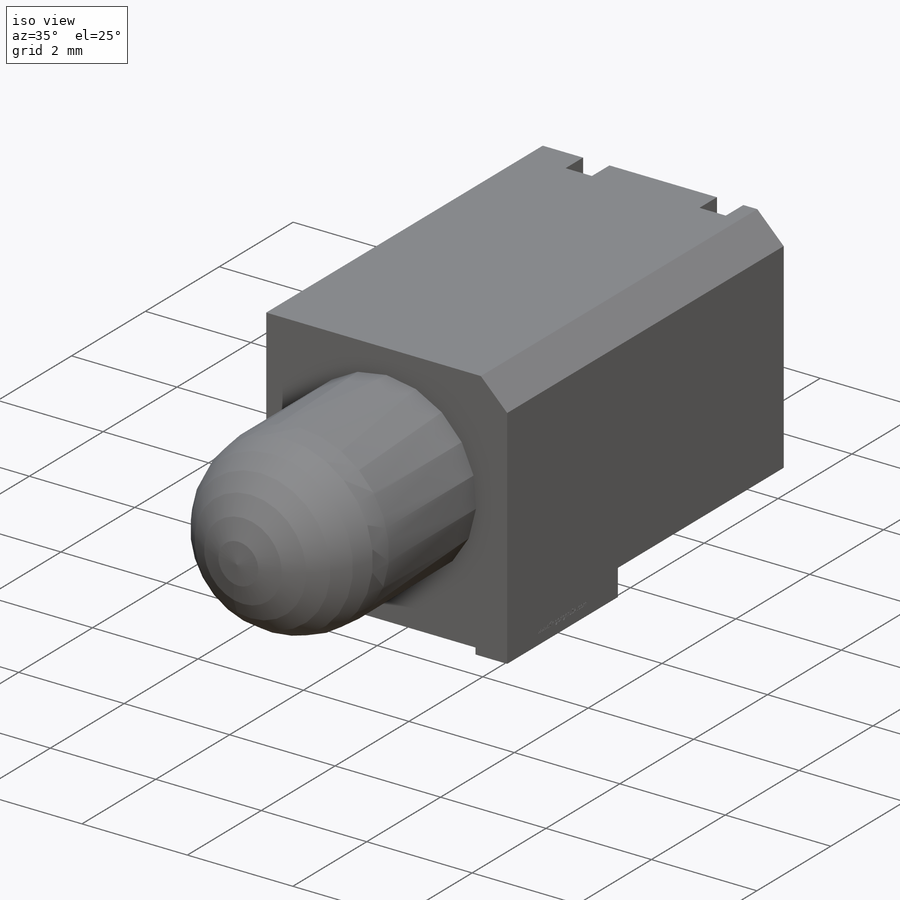
[diagram: iso view]
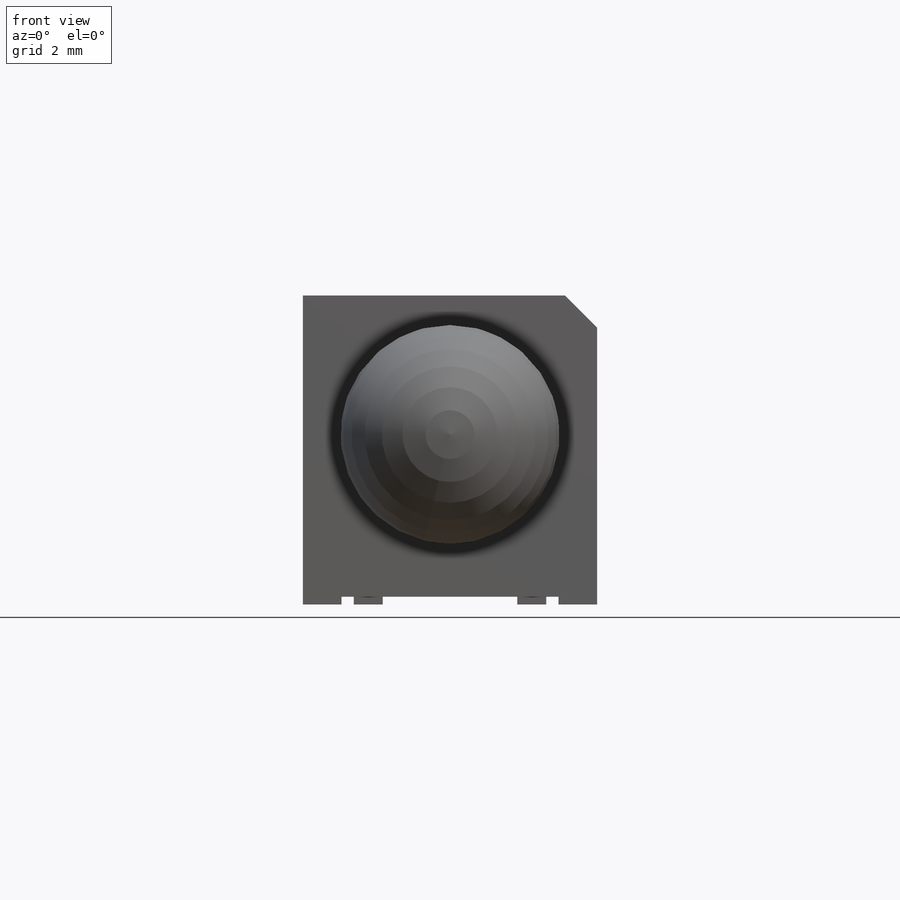
[diagram: front view]
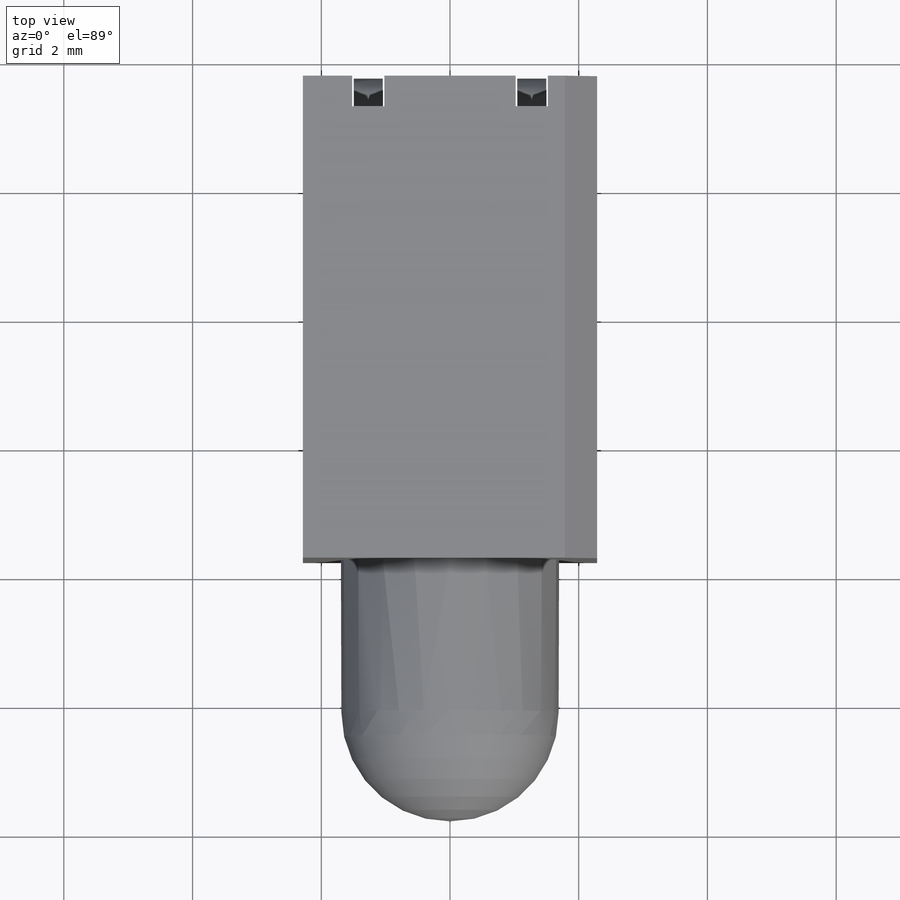
[diagram: top view]
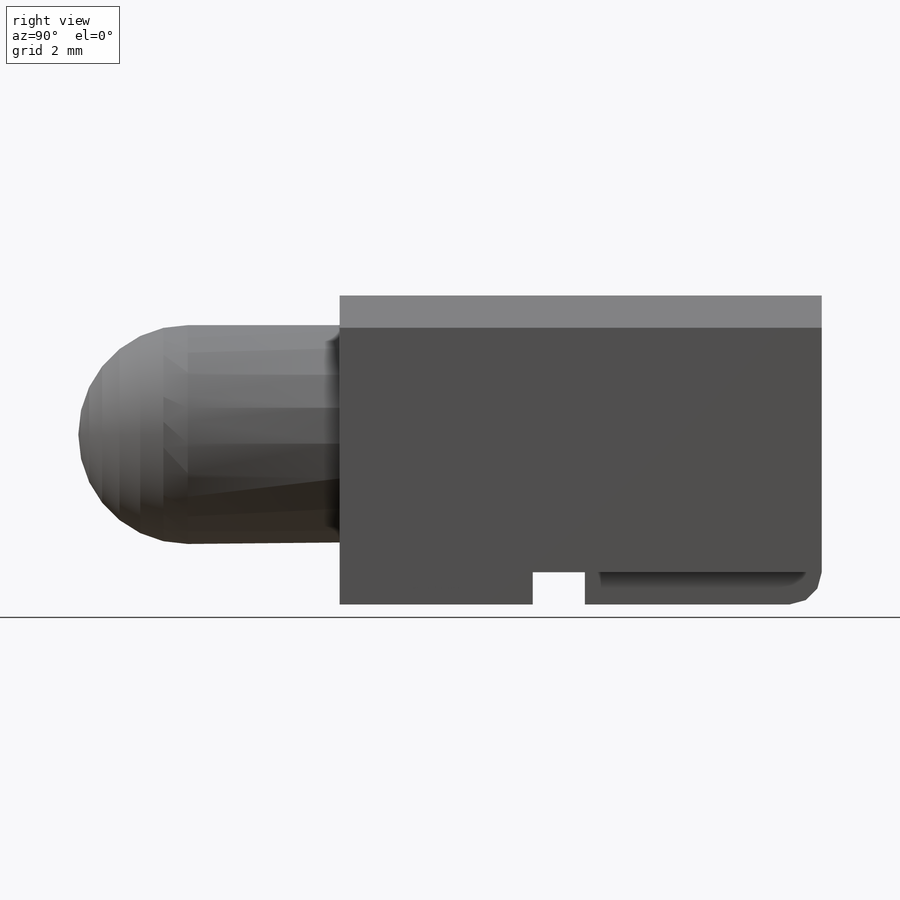
[diagram: right view]
SOLIDWORKS PART (.sldprt)
format: sldprt  version: not decoded by parser v0  size: 735,744 bytes
history: native  units: mm
features: sketch x7, extrude x3, cut_extrude x3, material x1, revolve x1, chamfer x1, fillet x1 (+11 scaffold rows collapsed)
feature tree (28):
  scaffold x11  (default folders/planes/origin — collapsed)
  material  "Material <not specified>"
  sketch  "Sketch1"  dims[D4=3.4mm D1=4.8mm D2=7.49mm D3=4.06mm D5=2.64mm D6=0.5mm D7=3.0mm]
  extrude  "Extrude1"  Depth=4.57mm
  revolve  "Revolve1"  [1 undecoded]
  sketch  "Sketch1<3>"  dims[D1=360.0deg]
  sketch  "Sketch2"  dims[D4=0.5mm D1=0.6mm D2=0.6mm D3=0.12mm D5=6.0mm D6=12.0mm D7=12.0mm]
  cut_extrude  "Cut-Extrude1"  [1 undecoded]
  sketch  "Sketch3"  dims[c1.D1=0.45mm c1.D2=0.45mm c1.D3=4.4mm c1.D4=2.54mm c1.D5=6.0mm c1.D6=12.0mm c1.D7=12.0mm c2.D3=4.57mm c3.D3=90.0deg c4.D3=0.5mm c4.D5=0.475mm]
  cut_extrude  "Cut-Extrude2"  [1 undecoded]
  extrude  "Extrude2"  [1 undecoded]
  sketch  "Sketch3<3>"
  chamfer  "Chamfer1"  Distance=0.5mm Angle=45deg
  sketch  "Sketch5"  dims[D1=0.38mm]
  extrude  "Extrude3"  Depth=3.81mm
  fillet  "Fillet1"  Radius=0.5mm
  sketch  "Sketch4"  dims[D1=3.0mm D2=0.5mm]
  cut_extrude  "Cut-Extrude3"  Depth=0.01mm
decode coverage: 11 of 16 modeling features carry decoded parameters
note: 4 parameter values undecoded
summary: no parameter record found for 4 features
note: suppression state not decoded; provenance and decode notes live in map.json
